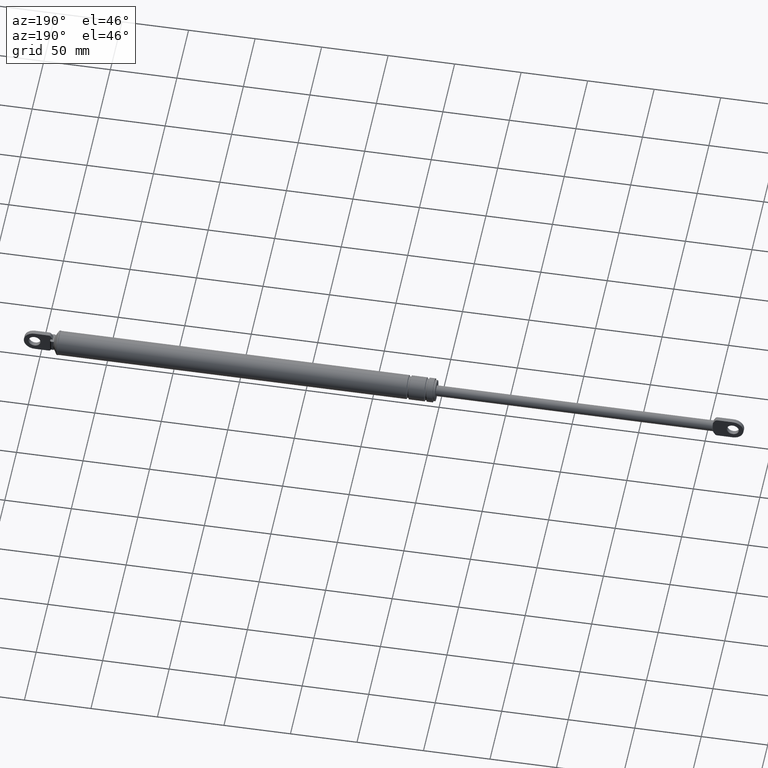
[diagram: clean part render]
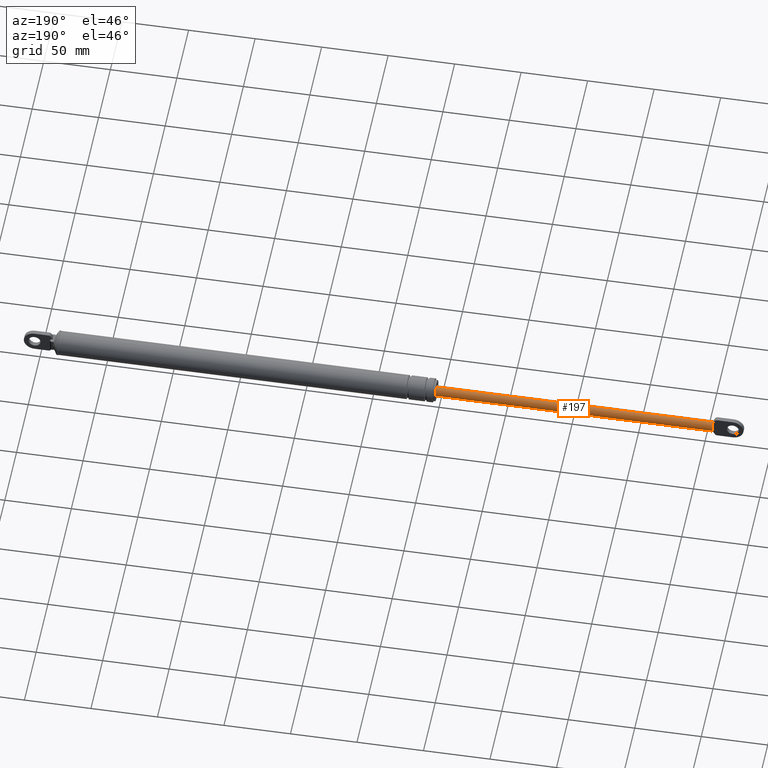
[diagram: same view with one face highlighted and labeled with its STEP entity id]
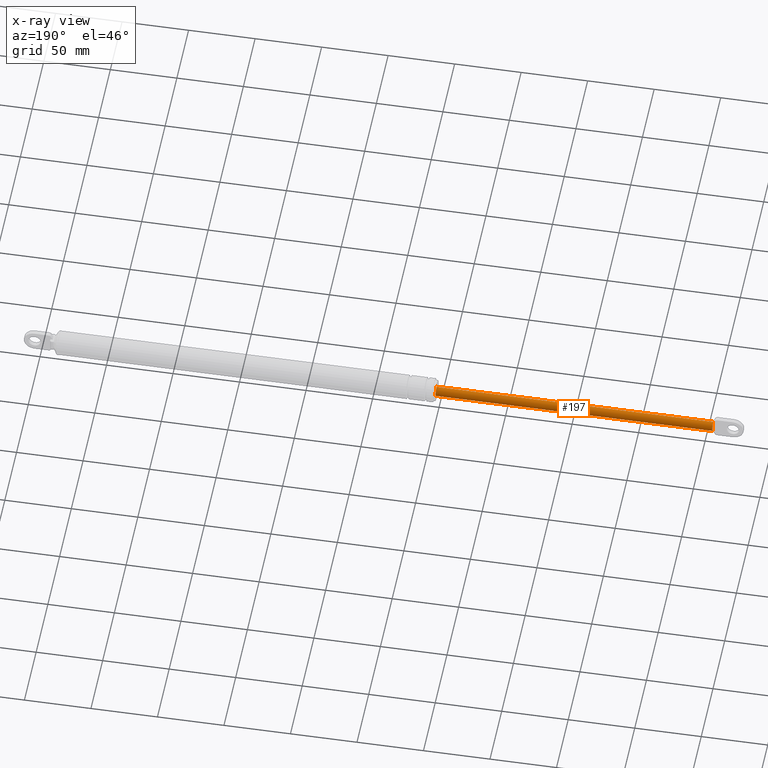
[diagram: x-ray of the same camera — body ghosted, the highlighted face saturated]
A machine part, auxiliary view. The second image highlights one B-rep face of the part: STEP entity #197.
The next image is the same camera in x-ray: the body ghosted, the highlighted face saturated — about 0% of this face is hidden behind the body in this view.
In plain terms, the highlighted cylindrical surface (edge-blend (fillet) strip) has radius 4 mm, axis along (1, 0, 0).
Its self-contained STEP definition (entity closure, byte-faithful):
#197=ADVANCED_FACE('',(#1061),#1060,.T.);
#1060=CYLINDRICAL_SURFACE('',#1835,4.00000000000E+000);
#1061=FACE_OUTER_BOUND('',#1836,.T.);
#1832=CARTESIAN_POINT('',(0.00000000000E+000,0.00000000000E+000,2.06267818784E+002));
#1833=DIRECTION('',(1.00000000000E+000,-0.00000000000E+000,-0.00000000000E+000));
#1834=DIRECTION('',(-0.00000000000E+000,-0.00000000000E+000,-1.00000000000E+000));
#1835=AXIS2_PLACEMENT_3D('',#1832,#1833,#1834);
#1836=EDGE_LOOP('',(#2260,#2261,#2262,#2263,#2264,#2265));
#2260=ORIENTED_EDGE('',*,*,#2489,.T.);
#2261=ORIENTED_EDGE('',*,*,#2490,.F.);
#2262=ORIENTED_EDGE('',*,*,#2455,.F.);
#2263=ORIENTED_EDGE('',*,*,#2452,.F.);
#2264=ORIENTED_EDGE('',*,*,#2465,.F.);
#2265=ORIENTED_EDGE('',*,*,#2491,.T.);
#2452=EDGE_CURVE('',#3634,#3635,#3636,.T.);
#2455=EDGE_CURVE('',#3635,#3655,#3656,.T.);
#2465=EDGE_CURVE('',#3716,#3634,#3723,.T.);
#2489=EDGE_CURVE('',#3875,#3874,#3882,.T.);
#2490=EDGE_CURVE('',#3655,#3874,#3888,.T.);
#2491=EDGE_CURVE('',#3716,#3875,#3894,.T.);
#3634=VERTEX_POINT('',#4669);
#3635=VERTEX_POINT('',#4670);
#3636=CIRCLE('',#4674,4.00000000000E+000);
#3655=VERTEX_POINT('',#4682);
#3656=CIRCLE('',#4686,4.00000000000E+000);
#3716=VERTEX_POINT('',#4720);
#3723=CIRCLE('',#4728,4.00000000000E+000);
#3874=VERTEX_POINT('',#4816);
#3875=VERTEX_POINT('',#4817);
#3882=CIRCLE('',#4825,4.00000000000E+000);
#3888=(BOUNDED_CURVE() B_SPLINE_CURVE(1,(#4826,#4827),.UNSPECIFIED.,.F.,.F.) B_SPLINE_CURVE_WITH_KNOTS((2,2),(4.38596492634E-002,9.56140350804E-001),.UNSPECIFIED.) CURVE() GEOMETRIC_REPRESENTATION_ITEM() RATIONAL_B_SPLINE_CURVE((1.00000000000E+000,1.00000000000E+000)) REPRESENTATION_ITEM('') );
#3894=(BOUNDED_CURVE() B_SPLINE_CURVE(1,(#4828,#4829),.UNSPECIFIED.,.F.,.F.) B_SPLINE_CURVE_WITH_KNOTS((2,2),(4.38596491228E-002,9.56140350877E-001),.UNSPECIFIED.) CURVE() GEOMETRIC_REPRESENTATION_ITEM() RATIONAL_B_SPLINE_CURVE((7.50000000000E-001,7.50000000000E-001)) REPRESENTATION_ITEM('') );
#4669=CARTESIAN_POINT('',(-5.61330699119E+001,1.60000000000E+000,2.09933879340E+002));
#4670=CARTESIAN_POINT('',(-5.61330699119E+001,1.60000000000E+000,2.02601758228E+002));
#4671=CARTESIAN_POINT('',(-5.61330699119E+001,0.00000000000E+000,2.06267818784E+002));
#4672=DIRECTION('',(-1.00000000000E+000,0.00000000000E+000,0.00000000000E+000));
#4673=DIRECTION('',(-0.00000000000E+000,-0.00000000000E+000,-1.00000000000E+000));
#4674=AXIS2_PLACEMENT_3D('',#4671,#4672,#4673);
#4682=CARTESIAN_POINT('',(-5.61330699119E+001,2.07386748338E-014,2.02267818784E+002));
#4683=CARTESIAN_POINT('',(-5.61330699119E+001,0.00000000000E+000,2.06267818784E+002));
#4684=DIRECTION('',(-1.00000000000E+000,0.00000000000E+000,0.00000000000E+000));
#4685=DIRECTION('',(-0.00000000000E+000,4.00000000000E-001,-9.16515138991E-001));
#4686=AXIS2_PLACEMENT_3D('',#4683,#4684,#4685);
#4720=CARTESIAN_POINT('',(-5.61330699119E+001,5.49543663975E-007,2.10267818784E+002));
#4725=CARTESIAN_POINT('',(-5.61330699119E+001,0.00000000000E+000,2.06267818784E+002));
#4726=DIRECTION('',(-1.00000000000E+000,0.00000000000E+000,0.00000000000E+000));
#4727=DIRECTION('',(-0.00000000000E+000,-0.00000000000E+000,-1.00000000000E+000));
#4728=AXIS2_PLACEMENT_3D('',#4725,#4726,#4727);
#4816=CARTESIAN_POINT('',(1.51866930088E+002,4.44089209850E-016,2.02267818784E+002));
#4817=CARTESIAN_POINT('',(1.51866930088E+002,0.00000000000E+000,2.10267818784E+002));
#4822=CARTESIAN_POINT('',(1.51866930088E+002,0.00000000000E+000,2.06267818784E+002));
#4823=DIRECTION('',(-1.00000000000E+000,0.00000000000E+000,0.00000000000E+000));
#4824=DIRECTION('',(0.00000000000E+000,-1.22460635382E-016,1.00000000000E+000));
#4825=AXIS2_PLACEMENT_3D('',#4822,#4823,#4824);
#4826=CARTESIAN_POINT('',(-5.61330698799E+001,0.00000000000E+000,2.02267818784E+002));
#4827=CARTESIAN_POINT('',(1.51866930071E+002,0.00000000000E+000,2.02267818784E+002));
#4828=CARTESIAN_POINT('',(-5.61330699119E+001,-1.48029736617E-016,2.10267818784E+002));
#4829=CARTESIAN_POINT('',(1.51866930088E+002,-1.48029736617E-016,2.10267818784E+002));